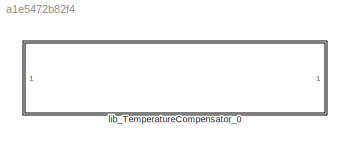
MODEL slx_a1e5472b82f4
KIND library
CONFIG AbsTol = auto
CONFIG EnableMultiTasking = off
CONFIG FixedStep = auto
CONFIG MaxStep = auto
CONFIG MinStep = auto
CONFIG RelTol = 1e-3
CONFIG SampleTimeConstraint = Unconstrained
CONFIG SolverName = VariableStepAuto
CONFIG StartTime = 0.0
CONFIG StopTime = 10.0
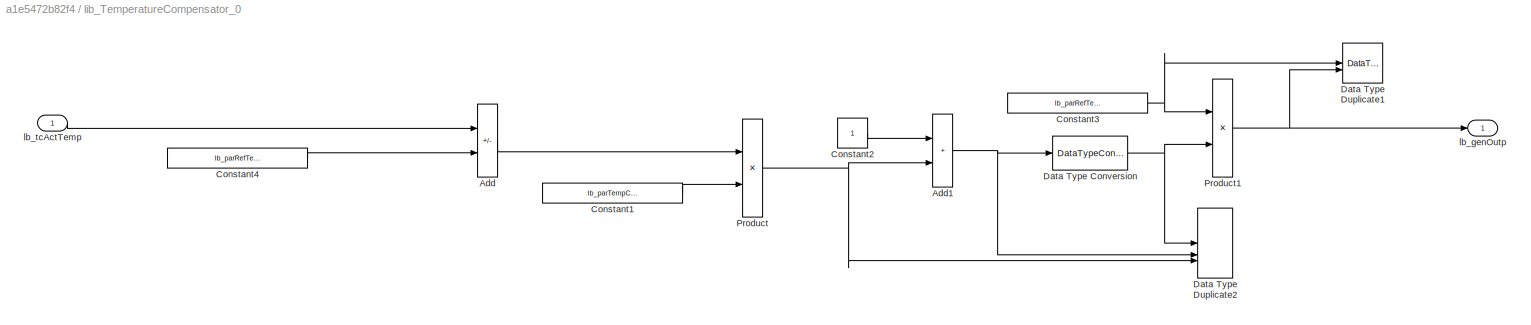
BLOCK [SubSystem] lib_TemperatureCompensator_0
BLOCK [Sum] lib_TemperatureCompensator_0/Add
  IconShape = rectangular
  Inputs = +-
  OutDataTypeStr = Inherit: Same as first input
BLOCK [Sum] lib_TemperatureCompensator_0/Add1
  IconShape = rectangular
  OutDataTypeStr = Inherit: Inherit via back propagation
BLOCK [Constant] lib_TemperatureCompensator_0/Constant1
  Value = lb_parTempCoef
BLOCK [Constant] lib_TemperatureCompensator_0/Constant2
  OutDataTypeStr = uint8
BLOCK [Constant] lib_TemperatureCompensator_0/Constant3
  Value = lb_parRefTempOutpVal
BLOCK [Constant] lib_TemperatureCompensator_0/Constant4
  Value = lb_parRefTemp
BLOCK [DataTypeConversion] lib_TemperatureCompensator_0/Data Type Conversion
  OutDataTypeStr = fixdt(1,16,2^-13,0)
  RndMeth = Floor
  SaturateOnIntegerOverflow = off
BLOCK [DataTypeDuplicate] lib_TemperatureCompensator_0/Data Type Duplicate1
BLOCK [DataTypeDuplicate] lib_TemperatureCompensator_0/Data Type Duplicate2
  NumInputPorts = 3
BLOCK [Product] lib_TemperatureCompensator_0/Product
  OutDataTypeStr = Inherit: Inherit via back propagation
BLOCK [Product] lib_TemperatureCompensator_0/Product1
  OutDataTypeStr = Inherit: Inherit via back propagation
BLOCK [Outport] lib_TemperatureCompensator_0/lb_genOutp
  VectorParamsAs1DForOutWhenUnconnected = off
BLOCK [Inport] lib_TemperatureCompensator_0/lb_tcActTemp
NET lib_TemperatureCompensator_0/Add1:1 -> lib_TemperatureCompensator_0/Data Type Conversion:1, lib_TemperatureCompensator_0/Data Type Duplicate2:2
LINE lib_TemperatureCompensator_0/Add:1 -> lib_TemperatureCompensator_0/Product:1
LINE lib_TemperatureCompensator_0/Constant1:1 -> lib_TemperatureCompensator_0/Product:2
LINE lib_TemperatureCompensator_0/Constant2:1 -> lib_TemperatureCompensator_0/Add1:1
NET lib_TemperatureCompensator_0/Constant3:1 -> lib_TemperatureCompensator_0/Data Type Duplicate1:1, lib_TemperatureCompensator_0/Product1:1
LINE lib_TemperatureCompensator_0/Constant4:1 -> lib_TemperatureCompensator_0/Add:2
NET lib_TemperatureCompensator_0/Data Type Conversion:1 -> lib_TemperatureCompensator_0/Data Type Duplicate2:1, lib_TemperatureCompensator_0/Product1:2
NET lib_TemperatureCompensator_0/Product1:1 -> lib_TemperatureCompensator_0/Data Type Duplicate1:2, lib_TemperatureCompensator_0/lb_genOutp:1
NET lib_TemperatureCompensator_0/Product:1 -> lib_TemperatureCompensator_0/Add1:2, lib_TemperatureCompensator_0/Data Type Duplicate2:3
LINE lib_TemperatureCompensator_0/lb_tcActTemp:1 -> lib_TemperatureCompensator_0/Add:1
note: NET lines group one-source signal fan-out (src -> all destinations, sorted); 1:1 wires keep LINE
